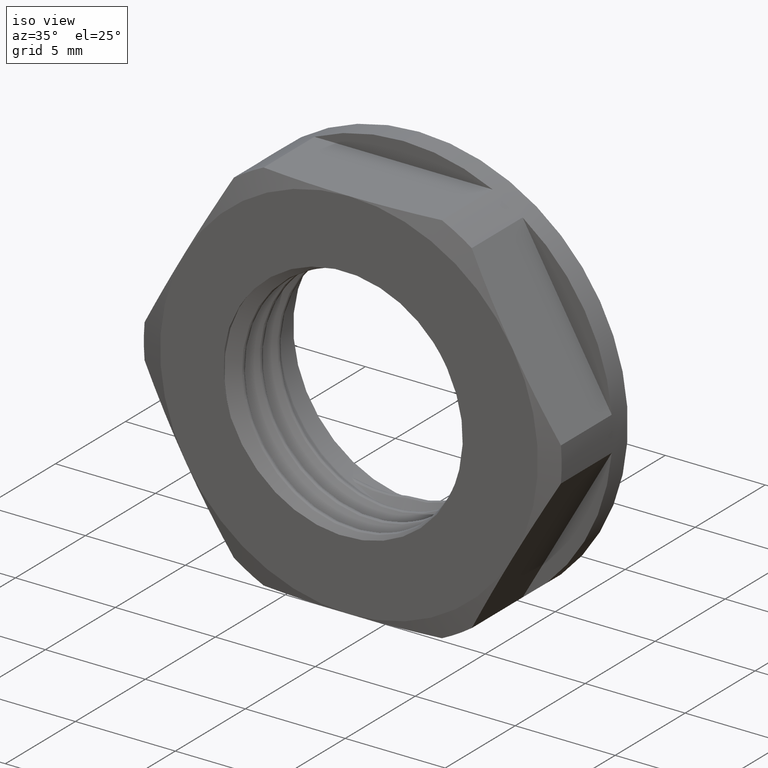
[diagram: clean part render]
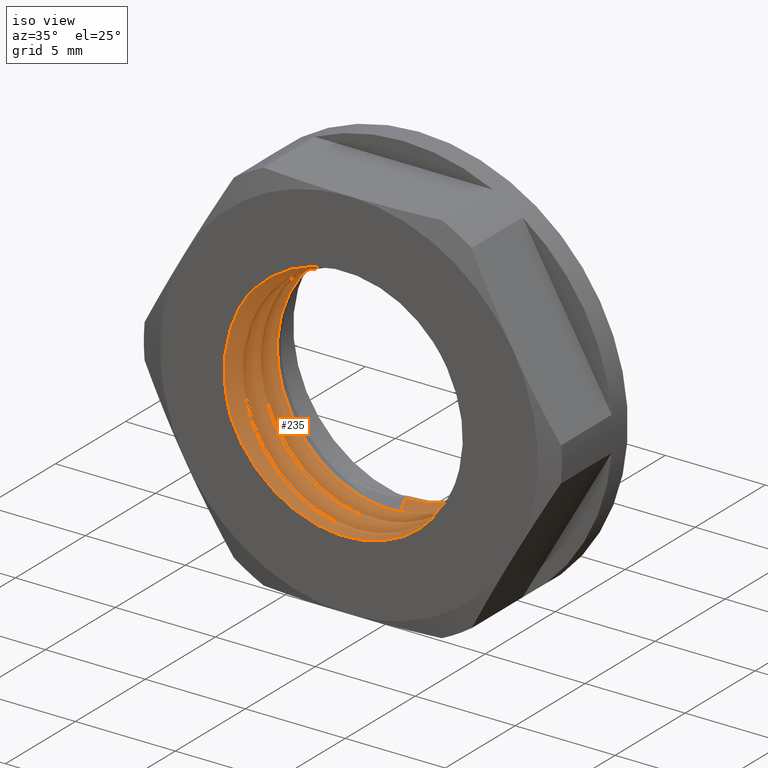
[diagram: same view with one face highlighted and labeled with its STEP entity id]
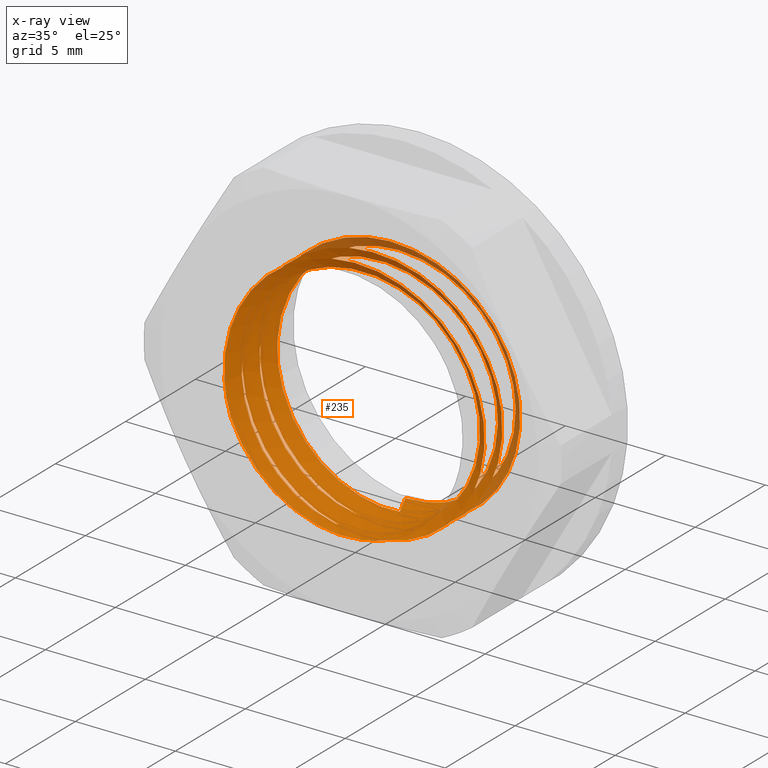
[diagram: x-ray of the same camera — body ghosted, the highlighted face saturated]
A machine part, iso view. The second image highlights one B-rep face of the part: STEP entity #235.
The next image is the same camera in x-ray: the body ghosted, the highlighted face saturated — about 10% of this face is hidden behind the body in this view.
In plain terms, the highlighted face is a freeform B-spline surface patch.
Its self-contained STEP definition (entity closure, byte-faithful):
#2 = CARTESIAN_POINT ( 'NONE',  ( 6.290000000000006253, 3.035639298303869804, 2.605403307326767948 ) ) ;
#4 = CARTESIAN_POINT ( 'NONE',  ( 7.703028366636849654E-16, 0.2575142983038665179, 6.289999999999999147 ) ) ;
#5 = CARTESIAN_POINT ( 'NONE',  ( 5.740009734643887640, 2.385885927115276139, -2.377589880243087261 ) ) ;
#13 = CARTESIAN_POINT ( 'NONE',  ( -6.289999999999995595, 0.01938929830386593514, 2.605403307326773277 ) ) ;
#14 = CARTESIAN_POINT ( 'NONE',  ( -5.740009734643887640, 1.750885927115279017, 2.377589880243092590 ) ) ;
#21 = CARTESIAN_POINT ( 'NONE',  ( 0.0000000000000000000, 3.432514298303865008, -6.289999999999999147 ) ) ;
#22 = CARTESIAN_POINT ( 'NONE',  ( -5.498432423239737687, -1.226932917795190425, 3.054724355333227948 ) ) ;
#25 = CARTESIAN_POINT ( 'NONE',  ( 5.740009734643887640, 2.227135927115277969, 2.377589880243087261 ) ) ;
#35 = CARTESIAN_POINT ( 'NONE',  ( -4.058799807443485008, 5.640260927115280154, 4.058799807443490337 ) ) ;
#58 = CARTESIAN_POINT ( 'NONE',  ( 6.289999999999999147, 4.385014298303869573, -3.851514183318424827E-16 ) ) ;
#59 = CARTESIAN_POINT ( 'NONE',  ( -2.590245273290521233, 2.409999999999998366, -5.531047952235991438 ) ) ;
#103 = CARTESIAN_POINT ( 'NONE',  ( 6.289999999999999147, 5.655014298303869147, -3.851514183318424827E-16 ) ) ;
#108 = CARTESIAN_POINT ( 'NONE',  ( 4.401297004981120864, 2.409999999999999698, -3.770000723141512911 ) ) ;
#112 = CARTESIAN_POINT ( 'NONE',  ( 4.058799807443485008, 6.275260927115279941, -4.058799807443490337 ) ) ;
#115 = CARTESIAN_POINT ( 'NONE',  ( 4.447701653663385102, 2.956264298303864724, 4.447701653663385102 ) ) ;
#119 = EDGE_CURVE ( 'NONE', #270, #1558, #484, .T. ) ;
#120 = CARTESIAN_POINT ( 'NONE',  ( 3.164851914515576681, 2.409999999999999254, -4.962312583039936165 ) ) ;
#126 = CARTESIAN_POINT ( 'NONE',  ( 5.740009734643887640, 4.925885927115277951, -2.377589880243087261 ) ) ;
#129 = CARTESIAN_POINT ( 'NONE',  ( 5.740009734643887640, -0.1541140728847225083, -2.377589880243087261 ) ) ;
#131 = CARTESIAN_POINT ( 'NONE',  ( 0.0000000000000000000, 5.972514298303869040, -6.289999999999999147 ) ) ;
#136 = CARTESIAN_POINT ( 'NONE',  ( -4.447701653663385102, 5.178764298303869751, 4.447701653663385102 ) ) ;
#138 = CARTESIAN_POINT ( 'NONE',  ( -2.605403307326773277, 3.511889298303869200, -6.289999999999995595 ) ) ;
#143 = CARTESIAN_POINT ( 'NONE',  ( -5.740009734643890305, 4.211510927115274860, 1.054422682290941796E-15 ) ) ;
#147 = CARTESIAN_POINT ( 'NONE',  ( -5.017655903764335790, -0.7654362889837827977, 2.787622819756196524 ) ) ;
#149 = CARTESIAN_POINT ( 'NONE',  ( 7.029484548606289816E-16, 3.259010927115274736, 5.740009734643890305 ) ) ;
#151 = CARTESIAN_POINT ( 'NONE',  ( 4.881652594954496216, 2.409999999999999698, -3.056591059789910858 ) ) ;
#154 = CARTESIAN_POINT ( 'NONE',  ( 2.605403307326767948, 5.893139298303867513, -6.290000000000006253 ) ) ;
#158 = CARTESIAN_POINT ( 'NONE',  ( 2.605403307326767948, -0.4568607016961331868, -6.290000000000006253 ) ) ;
#159 = CARTESIAN_POINT ( 'NONE',  ( -5.740009734643887640, 4.290885927115279941, 2.377589880243092590 ) ) ;
#172 = CARTESIAN_POINT ( 'NONE',  ( 4.447701653663385102, 0.4162642983038675193, 4.447701653663385102 ) ) ;
#173 = CARTESIAN_POINT ( 'NONE',  ( 2.377589880243087261, 5.084635927115280118, -5.740009734643887640 ) ) ;
#183 = CARTESIAN_POINT ( 'NONE',  ( 6.289999999999999147, 0.5750142983038659672, -3.851514183318424827E-16 ) ) ;
#184 = CARTESIAN_POINT ( 'NONE',  ( -5.740009734643890305, 4.211510927115274860, 1.054422682290941796E-15 ) ) ;
#192 =( BOUNDED_CURVE ( )  B_SPLINE_CURVE ( 2, ( #1004, #154, #1643, #815, #2182, #287, #502, #2158, #1511 ),
 .UNSPECIFIED., .F., .T. ) 
 B_SPLINE_CURVE_WITH_KNOTS ( ( 3, 2, 2, 2, 3 ),
 ( 0.0000000000000000000, 0.02083333333333333218, 0.04166666666666661578, 0.06249999999999994449, 0.08333333333333323156 ),
 .UNSPECIFIED. ) 
 CURVE ( )  GEOMETRIC_REPRESENTATION_ITEM ( )  RATIONAL_B_SPLINE_CURVE ( ( 1.000000000000000000, 0.9238795325112869605, 1.000000000000000000, 0.9238795325112869605, 1.000000000000000000, 0.9238795325112869605, 1.000000000000000000, 0.9238795325112871826, 0.9999999999999997780 ) ) 
 REPRESENTATION_ITEM ( '' )  );
#195 = CARTESIAN_POINT ( 'NONE',  ( -4.447701653663385102, 1.051264298303866029, -4.447701653663385102 ) ) ;
#196 = CARTESIAN_POINT ( 'NONE',  ( -2.377589880243092590, 2.703385927115278253, -5.740009734643887640 ) ) ;
#205 = EDGE_CURVE ( 'NONE', #1637, #366, #211, .T. ) ;
#208 = CARTESIAN_POINT ( 'NONE',  ( 7.029484548606289816E-16, 5.799010927115279657, 5.740009734643890305 ) ) ;
#209 = CARTESIAN_POINT ( 'NONE',  ( -6.289999999999995595, 3.670639298303866926, -2.605403307326767948 ) ) ;
#211 = B_SPLINE_CURVE_WITH_KNOTS ( 'NONE', 3,
 ( #1639, #151, #1518, #108, #465, #1136, #120, #1770, #1063, #231, #582, #740, #569, #905, #1748, #1914, #1399, #59, #385, #1387, #885, #395, #1234, #707, #2082, #219, #1590, #1245 ),
 .UNSPECIFIED., .F., .F.,
 ( 4, 2, 2, 2, 2, 2, 2, 2, 2, 2, 2, 2, 2, 4 ),
 ( 2.658219637588838087E-17, 0.0008600312832356945885, 0.001720062566471362723, 0.003440125132942698557, 0.005160187699414035475, 0.006020218982649702850, 0.006880250265885371093, 0.007740281549121038468, 0.008600312832356704976, 0.009460344115592373218, 0.01032037539882804320, 0.01118040668206371144, 0.01204043796529937795, 0.01376050053177071096 ),
 .UNSPECIFIED. ) ;
#219 = CARTESIAN_POINT ( 'NONE',  ( -5.410423260531196377, 2.410000000000004139, -3.170680815359750770 ) ) ;
#231 = CARTESIAN_POINT ( 'NONE',  ( 0.7828713576189918477, 2.409999999999997478, -5.919740438357332657 ) ) ;
#235 = ADVANCED_FACE ( 'NONE', ( #1904 ), #718, .T. ) ;
#252 = CARTESIAN_POINT ( 'NONE',  ( 4.447701653663385102, 4.226264298303865630, 4.447701653663385102 ) ) ;
#268 =( BOUNDED_CURVE ( )  B_SPLINE_CURVE ( 2, ( #612, #275, #1106, #1781, #58, #1923, #252, #1276, #1085 ),
 .UNSPECIFIED., .F., .F. ) 
 B_SPLINE_CURVE_WITH_KNOTS ( ( 3, 2, 2, 2, 3 ),
 ( 0.1666666666666665741, 0.1875000000000001665, 0.2083333333333337589, 0.2291666666666668517, 0.2500000000000004441 ),
 .UNSPECIFIED. ) 
 CURVE ( )  GEOMETRIC_REPRESENTATION_ITEM ( )  RATIONAL_B_SPLINE_CURVE ( ( 0.9999999999999997780, 0.9238795325112871826, 1.000000000000000000, 0.9238795325112869605, 1.000000000000000000, 0.9238795325112869605, 1.000000000000000000, 0.9238795325112852952, 1.000000000000001554 ) ) 
 REPRESENTATION_ITEM ( '' )  );
#270 = VERTEX_POINT ( 'NONE', #1737 ) ;
#275 = CARTESIAN_POINT ( 'NONE',  ( 2.605403307326772389, 4.623139298303865274, -6.290000000000000036 ) ) ;
#287 = CARTESIAN_POINT ( 'NONE',  ( 6.290000000000006253, 5.575639298303870284, 2.605403307326767948 ) ) ;
#291 = CARTESIAN_POINT ( 'NONE',  ( 4.058799807443490337, -0.3922390728847234831, 4.058799807443485008 ) ) ;
#292 = EDGE_CURVE ( 'NONE', #1167, #1986, #1332, .T. ) ;
#301 = CARTESIAN_POINT ( 'NONE',  ( -4.058799807443490337, 5.322760927115279372, -4.058799807443485008 ) ) ;
#304 = CARTESIAN_POINT ( 'NONE',  ( 6.290000000000006253, 5.734389298303864457, -2.605403307326767948 ) ) ;
#311 = CARTESIAN_POINT ( 'NONE',  ( -5.740009734643887640, 5.402135927115277347, -2.377589880243087261 ) ) ;
#315 = CARTESIAN_POINT ( 'NONE',  ( 7.703028366636849654E-16, 5.337514298303870142, 6.289999999999999147 ) ) ;
#322 = CARTESIAN_POINT ( 'NONE',  ( 0.0000000000000000000, 3.894010927115274967, -5.740009734643890305 ) ) ;
#324 = CARTESIAN_POINT ( 'NONE',  ( -6.289999999999995595, 2.559389298303864191, 2.605403307326773277 ) ) ;
#325 = CARTESIAN_POINT ( 'NONE',  ( 0.0000000000000000000, 1.354010927115276264, -5.740009734643890305 ) ) ;
#332 = CARTESIAN_POINT ( 'NONE',  ( -6.289999999999995595, 5.099389298303871776, 2.605403307326772833 ) ) ;
#337 = CARTESIAN_POINT ( 'NONE',  ( 2.377589880243087261, 0.004635927115277159102, -5.740009734643887640 ) ) ;
#338 = CARTESIAN_POINT ( 'NONE',  ( 5.740009734643887640, 3.655885927115276601, -2.377589880243087261 ) ) ;
#347 = CARTESIAN_POINT ( 'NONE',  ( 6.289999999999999147, 1.845014298303864875, -3.851514183318424827E-16 ) ) ;
#349 = CARTESIAN_POINT ( 'NONE',  ( -5.740009734643887640, 4.132135927115276886, -2.377589880243087261 ) ) ;
#359 = CARTESIAN_POINT ( 'NONE',  ( 4.447701653663385102, 0.7337642983038660249, -4.447701653663385102 ) ) ;
#361 = CARTESIAN_POINT ( 'NONE',  ( -4.058799807443485008, 0.5602609271152770853, 4.058799807443490337 ) ) ;
#366 = VERTEX_POINT ( 'NONE', #1258 ) ;
#368 = CARTESIAN_POINT ( 'NONE',  ( -4.058799807443490337, 2.782760927115279781, -4.058799807443485008 ) ) ;
#373 = CARTESIAN_POINT ( 'NONE',  ( -2.605403307326773277, -0.2981107016961312972, -6.289999999999995595 ) ) ;
#374 = CARTESIAN_POINT ( 'NONE',  ( 4.058799807443485008, 5.005260927115279479, -4.058799807443490337 ) ) ;
#385 = CARTESIAN_POINT ( 'NONE',  ( -2.851495400962189120, 2.409999999999998810, -5.414231642245182385 ) ) ;
#386 = CARTESIAN_POINT ( 'NONE',  ( -4.447701653663385102, 3.591264298303864955, -4.447701653663385102 ) ) ;
#395 = CARTESIAN_POINT ( 'NONE',  ( -4.063167928206421919, 2.409999999999978382, -4.650353581532226777 ) ) ;
#416 = CARTESIAN_POINT ( 'NONE',  ( 5.740009734643887640, 6.037135927115281575, 2.377589880243087261 ) ) ;
#455 = CARTESIAN_POINT ( 'NONE',  ( 4.058799807443485008, 5.005260927115279479, -4.058799807443490337 ) ) ;
#459 = CARTESIAN_POINT ( 'NONE',  ( -6.289999999999999147, 3.750014298303864901, 1.155454254995528040E-15 ) ) ;
#465 = CARTESIAN_POINT ( 'NONE',  ( 4.215987886039672006, 2.410000000000001030, -3.992923029111210553 ) ) ;
#473 = CARTESIAN_POINT ( 'NONE',  ( 2.605403307326767948, 4.146889298303866767, 6.290000000000006253 ) ) ;
#479 = CARTESIAN_POINT ( 'NONE',  ( -4.058799807443485008, 4.370260927115279692, 4.058799807443490337 ) ) ;
#483 = CARTESIAN_POINT ( 'NONE',  ( 5.740009734643887640, -0.3128640728847223995, 2.377589880243087261 ) ) ;
#484 = B_SPLINE_CURVE_WITH_KNOTS ( 'NONE', 1,
 ( #991, #131 ),
 .UNSPECIFIED., .F., .F.,
 ( 2, 2 ),
 ( 0.0000000000000000000, 1.000000000000000000 ),
 .UNSPECIFIED. ) ;
#490 = CARTESIAN_POINT ( 'NONE',  ( -4.058799807443490337, 4.052760927115279799, -4.058799807443485008 ) ) ;
#492 = CARTESIAN_POINT ( 'NONE',  ( -6.289999999999995595, 3.829389298303864653, 2.605403307326773277 ) ) ;
#494 = CARTESIAN_POINT ( 'NONE',  ( -5.740009734643887640, 1.592135927115276406, -2.377589880243087261 ) ) ;
#501 =( BOUNDED_CURVE ( )  B_SPLINE_CURVE ( 2, ( #1306, #1619, #768, #1328, #2146, #1116, #2015 ),
 .UNSPECIFIED., .F., .T. ) 
 B_SPLINE_CURVE_WITH_KNOTS ( ( 3, 2, 2, 3 ),
 ( 0.4166666666666672403, 0.4375000000000004441, 0.4583333333333330928, 0.4675677138156719703 ),
 .UNSPECIFIED. ) 
 CURVE ( )  GEOMETRIC_REPRESENTATION_ITEM ( )  RATIONAL_B_SPLINE_CURVE ( ( 0.9999999999999973355, 0.9238795325112896251, 1.000000000000000000, 0.9238795325112869605, 1.000000000000000000, 0.9662595827543550842, 0.9624300631547082485 ) ) 
 REPRESENTATION_ITEM ( '' )  );
#502 = CARTESIAN_POINT ( 'NONE',  ( 4.447701653663385102, 5.496264298303870532, 4.447701653663385102 ) ) ;
#505 = CARTESIAN_POINT ( 'NONE',  ( 6.290000000000006253, 3.035639298303869360, 2.605403307326767948 ) ) ;
#507 = CARTESIAN_POINT ( 'NONE',  ( -4.058799807443490337, 1.512760927115274878, -4.058799807443485008 ) ) ;
#509 = VERTEX_POINT ( 'NONE', #601 ) ;
#516 = CARTESIAN_POINT ( 'NONE',  ( 2.605403307326767948, -0.9331107016961317502, 6.290000000000006253 ) ) ;
#517 = CARTESIAN_POINT ( 'NONE',  ( 5.740009734643890305, 3.576510927115275074, -3.514742274303144908E-16 ) ) ;
#527 = CARTESIAN_POINT ( 'NONE',  ( -4.447701653663385102, 1.368764298303866145, 4.447701653663385102 ) ) ;
#529 = CARTESIAN_POINT ( 'NONE',  ( -2.377589880243087261, 4.449635927115278555, 5.740009734643887640 ) ) ;
#533 = CARTESIAN_POINT ( 'NONE',  ( -5.740009734643887640, 3.020885927115279479, 2.377589880243092590 ) ) ;
#538 = CARTESIAN_POINT ( 'NONE',  ( 6.290000000000006253, -0.6156107016961323009, -2.605403307326767948 ) ) ;
#539 = CARTESIAN_POINT ( 'NONE',  ( 4.058799807443490337, 4.687760927115279586, 4.058799807443485008 ) ) ;
#549 = CARTESIAN_POINT ( 'NONE',  ( 6.290000000000006253, -0.7743607016961324696, 2.605403307326767948 ) ) ;
#559 = CARTESIAN_POINT ( 'NONE',  ( -5.740009734643890305, 5.481510927115279763, 1.054422682290941796E-15 ) ) ;
#569 = CARTESIAN_POINT ( 'NONE',  ( -0.3606305939122831372, 2.410000000000003695, -6.004813322399380482 ) ) ;
#582 = CARTESIAN_POINT ( 'NONE',  ( 0.4952299446936841987, 2.409999999999991260, -5.962238220899978458 ) ) ;
#601 = CARTESIAN_POINT ( 'NONE',  ( 7.703028366636849654E-16, 5.337514298303870142, 6.289999999999999147 ) ) ;
#607 = ORIENTED_EDGE ( 'NONE', *, *, #205, .F. ) ;
#612 = CARTESIAN_POINT ( 'NONE',  ( 0.0000000000000000000, 4.702514298303870355, -6.289999999999999147 ) ) ;
#625 = CARTESIAN_POINT ( 'NONE',  ( 7.029484548606289816E-16, -0.5509890728847240959, 5.740009734643890305 ) ) ;
#635 = CARTESIAN_POINT ( 'NONE',  ( 4.058799807443485008, -0.07473907288472329824, -4.058799807443490337 ) ) ;
#644 = CARTESIAN_POINT ( 'NONE',  ( 5.740009734643887640, 4.767135927115275784, 2.377589880243087261 ) ) ;
#647 = CARTESIAN_POINT ( 'NONE',  ( -6.289999999999995595, 5.099389298303871776, 2.605403307326773277 ) ) ;
#654 = CARTESIAN_POINT ( 'NONE',  ( 2.605403307326767948, 3.353139298303865701, -6.290000000000006253 ) ) ;
#661 = CARTESIAN_POINT ( 'NONE',  ( 7.029484548606289816E-16, 4.529010927115279195, 5.740009734643890305 ) ) ;
#664 = CARTESIAN_POINT ( 'NONE',  ( -2.605403307326773277, 2.241889298303868738, -6.289999999999995595 ) ) ;
#665 = CARTESIAN_POINT ( 'NONE',  ( 0.0000000000000000000, 3.894010927115274967, -5.740009734643890305 ) ) ;
#671 = CARTESIAN_POINT ( 'NONE',  ( -4.058799807443485008, 3.100260927115280118, 4.058799807443490337 ) ) ;
#674 = CARTESIAN_POINT ( 'NONE',  ( -6.289999999999995595, 1.289389298303865949, 2.605403307326773277 ) ) ;
#676 = CARTESIAN_POINT ( 'NONE',  ( 2.377589880243087261, 0.7983859271152775605, 5.740009734643887640 ) ) ;
#682 = CARTESIAN_POINT ( 'NONE',  ( -2.377589880243087261, 3.179635927115276761, 5.740009734643887640 ) ) ;
#685 = CARTESIAN_POINT ( 'NONE',  ( 4.447701653663385102, 2.956264298303864724, 4.447701653663385102 ) ) ;
#686 = CARTESIAN_POINT ( 'NONE',  ( -6.289999999999999147, -0.05998570169613370168, 1.155454254995528040E-15 ) ) ;
#687 = CARTESIAN_POINT ( 'NONE',  ( 4.058799807443485008, 3.735260927115280349, -4.058799807443490337 ) ) ;
#697 = CARTESIAN_POINT ( 'NONE',  ( 6.290000000000006253, 0.6543892983038660516, -2.605403307326767948 ) ) ;
#698 = CARTESIAN_POINT ( 'NONE',  ( 2.377589880243087261, 3.338385927115275820, 5.740009734643887640 ) ) ;
#707 = CARTESIAN_POINT ( 'NONE',  ( -4.690751909709454104, 2.410000000000001918, -4.065397927147927248 ) ) ;
#708 = CARTESIAN_POINT ( 'NONE',  ( 0.0000000000000000000, 3.432514298303865008, -6.289999999999999147 ) ) ;
#716 = CARTESIAN_POINT ( 'NONE',  ( -5.740009734643887640, 5.560885927115282179, 2.377589880243092590 ) ) ;
#718 =( BOUNDED_SURFACE ( )  B_SPLINE_SURFACE ( 1, 2, ( 
 ( #1257, #727, #2093, #1052, #1937, #416, #1736, #1086, #208, #1566, #35, #716, #559, #1032, #1344, #853, #1516, #173, #374, #1691, #1714, #2042, #539, #1725, #1209, #529, #830, #159, #184, #349, #1197, #1042, #665, #839, #687, #338, #517, #1892, #1525, #698, #149, #2063, #1363, #2052, #1556, #1186, #863, #196, #873, #1682, #1535, #5, #1848, #25, #2197, #1546, #1333, #2019, #1376, #14, #2030, #494, #507, #1165, #325, #1880, #998, #1175, #1859, #1009, #2208, #676, #1353, #1869, #361, #1019, #1701, #2177, #782, #1174, #1829, #337, #635, #129, #1838, #483, #291, #1660, #625, #1515, #1131, #1342, #147 ),
 ( #1816, #1154, #809, #304, #103, #2162, #1495, #1331, #315, #977, #1997, #647, #988, #1503, #1323, #1858, #829, #1312, #1634, #1648, #2008, #1984, #1469, #473, #1671, #2151, #1142, #492, #459, #1299, #2028, #138, #1846, #654, #819, #2185, #2018, #505, #115, #796, #966, #1164, #1481, #324, #997, #1680, #2195, #664, #852, #1690, #1867, #1031, #347, #1555, #1724, #838, #1524, #2206, #527, #674, #1879, #862, #195, #1713, #1534, #1196, #359, #697, #183, #2051, #172, #2072, #4, #2040, #1545, #13, #686, #1362, #1373, #373, #872, #158, #2062, #538, #1007, #549, #1208, #516, #1352, #1891, #1185, #1041, #22 ) ),
 .UNSPECIFIED., .F., .F., .F. ) 
 B_SPLINE_SURFACE_WITH_KNOTS ( ( 2, 2 ),
 ( 3, 2, 2, 2, 2, 2, 2, 2, 2, 2, 2, 2, 2, 2, 2, 2, 2, 2, 2, 2, 2, 2, 2, 2, 2, 2, 2, 2, 2, 2, 2, 2, 2, 2, 2, 2, 2, 2, 2, 2, 2, 2, 2, 2, 2, 2, 3 ),
 ( 0.0000000000000000000, 1.000000000000000000 ),
 ( 0.0000000000000000000, 0.02083333333333334952, 0.04166666666666665048, 0.06250000000000000000, 0.08333333333333330095, 0.1041666666666666019, 0.1250000000000000000, 0.1458333333333333981, 0.1666666666666665186, 0.1875000000000000000, 0.2083333333333335091, 0.2291666666666664909, 0.2500000000000000000, 0.2708333333333335369, 0.2916666666666665186, 0.3125000000000000000, 0.3333333333333335369, 0.3541666666666665186, 0.3750000000000000000, 0.3958333333333335369, 0.4166666666666665186, 0.4375000000000000000, 0.4583333333333329818, 0.4791666666666670182, 0.5000000000000000000, 0.5208333333333330373, 0.5416666666666670737, 0.5625000000000000000, 0.5833333333333330373, 0.6041666666666670737, 0.6250000000000000000, 0.6458333333333330373, 0.6666666666666670737, 0.6875000000000000000, 0.7083333333333330373, 0.7291666666666670737, 0.7500000000000000000, 0.7708333333333330373, 0.7916666666666670737, 0.8125000000000000000, 0.8333333333333330373, 0.8541666666666670737, 0.8750000000000000000, 0.8958333333333330373, 0.9166666666666670737, 0.9375000000000000000, 0.9449178093676999790 ),
 .UNSPECIFIED. ) 
 GEOMETRIC_REPRESENTATION_ITEM ( )  RATIONAL_B_SPLINE_SURFACE ( (
 ( 1.000000000000000000, 0.9238795325112869605, 1.000000000000000000, 0.9238795325112869605, 1.000000000000000000, 0.9238795325112869605, 1.000000000000000000, 0.9238795325112869605, 1.000000000000000000, 0.9238795325112869605, 1.000000000000000000, 0.9238795325112869605, 1.000000000000000000, 0.9238795325112869605, 1.000000000000000000, 0.9238795325112869605, 1.000000000000000000, 0.9238795325112869605, 1.000000000000000000, 0.9238795325112869605, 1.000000000000000000, 0.9238795325112869605, 1.000000000000000000, 0.9238795325112869605, 1.000000000000000000, 0.9238795325112869605, 1.000000000000000000, 0.9238795325112869605, 1.000000000000000000, 0.9238795325112869605, 1.000000000000000000, 0.9238795325112869605, 1.000000000000000000, 0.9238795325112869605, 1.000000000000000000, 0.9238795325112869605, 1.000000000000000000, 0.9238795325112869605, 1.000000000000000000, 0.9238795325112869605, 1.000000000000000000, 0.9238795325112869605, 1.000000000000000000, 0.9238795325112869605, 1.000000000000000000, 0.9238795325112869605, 1.000000000000000000, 0.9238795325112869605, 1.000000000000000000, 0.9238795325112869605, 1.000000000000000000, 0.9238795325112869605, 1.000000000000000000, 0.9238795325112869605, 1.000000000000000000, 0.9238795325112869605, 1.000000000000000000, 0.9238795325112869605, 1.000000000000000000, 0.9238795325112869605, 1.000000000000000000, 0.9238795325112869605, 1.000000000000000000, 0.9238795325112869605, 1.000000000000000000, 0.9238795325112869605, 1.000000000000000000, 0.9238795325112869605, 1.000000000000000000, 0.9238795325112869605, 1.000000000000000000, 0.9238795325112869605, 1.000000000000000000, 0.9238795325112869605, 1.000000000000000000, 0.9238795325112869605, 1.000000000000000000, 0.9238795325112869605, 1.000000000000000000, 0.9238795325112869605, 1.000000000000000000, 0.9238795325112869605, 1.000000000000000000, 0.9238795325112869605, 1.000000000000000000, 0.9238795325112869605, 1.000000000000000000, 0.9238795325112869605, 1.000000000000000000, 0.9238795325112869605, 1.000000000000000000, 0.9728969383930500259, 0.9650942298371120165),
 ( 1.000000000000000000, 0.9238795325112869605, 1.000000000000000000, 0.9238795325112869605, 1.000000000000000000, 0.9238795325112869605, 1.000000000000000000, 0.9238795325112869605, 1.000000000000000000, 0.9238795325112869605, 1.000000000000000000, 0.9238795325112869605, 1.000000000000000000, 0.9238795325112869605, 1.000000000000000000, 0.9238795325112869605, 1.000000000000000000, 0.9238795325112869605, 1.000000000000000000, 0.9238795325112869605, 1.000000000000000000, 0.9238795325112869605, 1.000000000000000000, 0.9238795325112869605, 1.000000000000000000, 0.9238795325112869605, 1.000000000000000000, 0.9238795325112869605, 1.000000000000000000, 0.9238795325112869605, 1.000000000000000000, 0.9238795325112869605, 1.000000000000000000, 0.9238795325112869605, 1.000000000000000000, 0.9238795325112869605, 1.000000000000000000, 0.9238795325112869605, 1.000000000000000000, 0.9238795325112869605, 1.000000000000000000, 0.9238795325112869605, 1.000000000000000000, 0.9238795325112869605, 1.000000000000000000, 0.9238795325112869605, 1.000000000000000000, 0.9238795325112869605, 1.000000000000000000, 0.9238795325112869605, 1.000000000000000000, 0.9238795325112869605, 1.000000000000000000, 0.9238795325112869605, 1.000000000000000000, 0.9238795325112869605, 1.000000000000000000, 0.9238795325112869605, 1.000000000000000000, 0.9238795325112869605, 1.000000000000000000, 0.9238795325112869605, 1.000000000000000000, 0.9238795325112869605, 1.000000000000000000, 0.9238795325112869605, 1.000000000000000000, 0.9238795325112869605, 1.000000000000000000, 0.9238795325112869605, 1.000000000000000000, 0.9238795325112869605, 1.000000000000000000, 0.9238795325112869605, 1.000000000000000000, 0.9238795325112869605, 1.000000000000000000, 0.9238795325112869605, 1.000000000000000000, 0.9238795325112869605, 1.000000000000000000, 0.9238795325112869605, 1.000000000000000000, 0.9238795325112869605, 1.000000000000000000, 0.9238795325112869605, 1.000000000000000000, 0.9238795325112869605, 1.000000000000000000, 0.9238795325112869605, 1.000000000000000000, 0.9728969383930500259, 0.9650942298371120165) ) ) 
 REPRESENTATION_ITEM ( '' )  SURFACE ( )  );
#726 = CARTESIAN_POINT ( 'NONE',  ( 6.290000000000006253, 3.194389298303867530, -2.605403307326767948 ) ) ;
#727 = CARTESIAN_POINT ( 'NONE',  ( 2.377589880243087261, 6.354635927115275251, -5.740009734643887640 ) ) ;
#740 = CARTESIAN_POINT ( 'NONE',  ( -0.07539187108735764808, 2.409999999999991260, -6.004384240575380005 ) ) ;
#768 = CARTESIAN_POINT ( 'NONE',  ( -4.447701653663385102, 2.638764298303865274, 4.447701653663385102 ) ) ;
#782 = CARTESIAN_POINT ( 'NONE',  ( -4.058799807443490337, 0.2427609271152769976, -4.058799807443485008 ) ) ;
#793 = CARTESIAN_POINT ( 'NONE',  ( 0.0000000000000000000, 4.702514298303870355, -6.289999999999999147 ) ) ;
#796 = CARTESIAN_POINT ( 'NONE',  ( 2.605403307326767948, 2.876889298303866305, 6.290000000000006253 ) ) ;
#806 = CARTESIAN_POINT ( 'NONE',  ( 5.740009734643890305, 4.846510927115279976, -3.514742274303144908E-16 ) ) ;
#809 = CARTESIAN_POINT ( 'NONE',  ( 4.447701653663385102, 5.813764298303869538, -4.447701653663385102 ) ) ;
#815 = CARTESIAN_POINT ( 'NONE',  ( 6.290000000000006253, 5.734389298303863569, -2.605403307326767948 ) ) ;
#819 = CARTESIAN_POINT ( 'NONE',  ( 4.447701653663385102, 3.273764298303865061, -4.447701653663385102 ) ) ;
#825 = CARTESIAN_POINT ( 'NONE',  ( 5.740009734643890305, 3.576510927115275074, -3.514742274303144908E-16 ) ) ;
#829 = CARTESIAN_POINT ( 'NONE',  ( 0.0000000000000000000, 4.702514298303870355, -6.289999999999999147 ) ) ;
#830 = CARTESIAN_POINT ( 'NONE',  ( -4.058799807443485008, 4.370260927115279692, 4.058799807443490337 ) ) ;
#835 = CARTESIAN_POINT ( 'NONE',  ( -2.377589880243087261, 5.719635927115273688, 5.740009734643887640 ) ) ;
#838 = CARTESIAN_POINT ( 'NONE',  ( 2.605403307326767948, 1.606889298303866731, 6.290000000000006253 ) ) ;
#839 = CARTESIAN_POINT ( 'NONE',  ( 2.377589880243087261, 3.814635927115275216, -5.740009734643887640 ) ) ;
#852 = CARTESIAN_POINT ( 'NONE',  ( 0.0000000000000000000, 2.162514298303864990, -6.289999999999999147 ) ) ;
#853 = CARTESIAN_POINT ( 'NONE',  ( -2.377589880243092590, 5.243385927115273404, -5.740009734643887640 ) ) ;
#861 = CARTESIAN_POINT ( 'NONE',  ( 7.703028366636849654E-16, 2.797514298303864777, 6.289999999999999147 ) ) ;
#862 = CARTESIAN_POINT ( 'NONE',  ( -6.289999999999995595, 1.130639298303867113, -2.605403307326767948 ) ) ;
#863 = CARTESIAN_POINT ( 'NONE',  ( -4.058799807443490337, 2.782760927115279781, -4.058799807443485008 ) ) ;
#864 = CARTESIAN_POINT ( 'NONE',  ( -2.605403307326735973, 3.511889298303867868, -6.290000000000032010 ) ) ;
#872 = CARTESIAN_POINT ( 'NONE',  ( 0.0000000000000000000, -0.3774857016961340461, -6.289999999999999147 ) ) ;
#873 = CARTESIAN_POINT ( 'NONE',  ( 0.0000000000000000000, 2.624010927115274949, -5.740009734643890305 ) ) ;
#885 = CARTESIAN_POINT ( 'NONE',  ( -3.603382591783128586, 2.409999999999978382, -4.987972833220859492 ) ) ;
#905 = CARTESIAN_POINT ( 'NONE',  ( -0.9309690191795337855, 2.410000000000003695, -5.965913584017219939 ) ) ;
#908 = ORIENTED_EDGE ( 'NONE', *, *, #1951, .T. ) ;
#911 = VERTEX_POINT ( 'NONE', #2004 ) ;
#963 = CARTESIAN_POINT ( 'NONE',  ( -2.605403307326767948, 4.781889298303864777, -6.290000000000000036 ) ) ;
#966 = CARTESIAN_POINT ( 'NONE',  ( 7.703028366636849654E-16, 2.797514298303864777, 6.289999999999999147 ) ) ;
#972 = CARTESIAN_POINT ( 'NONE',  ( 7.703028366636849654E-16, 4.067514298303865239, 6.289999999999999147 ) ) ;
#974 = CARTESIAN_POINT ( 'NONE',  ( -2.377589880243092590, 5.243385927115273404, -5.740009734643887640 ) ) ;
#977 = CARTESIAN_POINT ( 'NONE',  ( -2.605403307326767948, 5.258139298303863285, 6.290000000000006253 ) ) ;
#985 = CARTESIAN_POINT ( 'NONE',  ( 2.377589880243087261, 5.878385927115276743, 5.740009734643887640 ) ) ;
#988 = CARTESIAN_POINT ( 'NONE',  ( -6.289999999999999147, 5.020014298303870248, 1.155454254995528040E-15 ) ) ;
#991 = CARTESIAN_POINT ( 'NONE',  ( 0.0000000000000000000, 6.434010927115280332, -5.740009734643890305 ) ) ;
#995 = CARTESIAN_POINT ( 'NONE',  ( 4.058799807443485008, 3.735260927115280349, -4.058799807443490337 ) ) ;
#997 = CARTESIAN_POINT ( 'NONE',  ( -6.289999999999999147, 2.480014298303865328, 1.155454254995528040E-15 ) ) ;
#998 = CARTESIAN_POINT ( 'NONE',  ( 4.058799807443485008, 1.195260927115276095, -4.058799807443490337 ) ) ;
#1004 = CARTESIAN_POINT ( 'NONE',  ( 0.0000000000000000000, 5.972514298303869040, -6.289999999999999147 ) ) ;
#1007 = CARTESIAN_POINT ( 'NONE',  ( 6.289999999999999147, -0.6949857016961339395, -3.851514183318424827E-16 ) ) ;
#1008 = EDGE_CURVE ( 'NONE', #911, #366, #501, .T. ) ;
#1009 = CARTESIAN_POINT ( 'NONE',  ( 5.740009734643887640, 0.9571359271152788395, 2.377589880243087261 ) ) ;
#1014 = CARTESIAN_POINT ( 'NONE',  ( 4.622862401621406825, 2.438629827876275691, -3.494737213265568521 ) ) ;
#1019 = CARTESIAN_POINT ( 'NONE',  ( -5.740009734643887640, 0.4808859271152782222, 2.377589880243092590 ) ) ;
#1030 = CARTESIAN_POINT ( 'NONE',  ( 4.447701653663385102, 3.273764298303865061, -4.447701653663385102 ) ) ;
#1031 = CARTESIAN_POINT ( 'NONE',  ( 6.290000000000006253, 1.924389298303867069, -2.605403307326767948 ) ) ;
#1032 = CARTESIAN_POINT ( 'NONE',  ( -5.740009734643887640, 5.402135927115278236, -2.377589880243087261 ) ) ;
#1035 = CARTESIAN_POINT ( 'NONE',  ( 0.0000000000000000000, 2.624010927115274949, -5.740009734643890305 ) ) ;
#1041 = CARTESIAN_POINT ( 'NONE',  ( -5.070611759780486061, -1.198073640171932963, 3.824791547546288140 ) ) ;
#1042 = CARTESIAN_POINT ( 'NONE',  ( -2.377589880243092590, 3.973385927115279159, -5.740009734643887640 ) ) ;
#1052 = CARTESIAN_POINT ( 'NONE',  ( 5.740009734643887640, 6.195885927115273084, -2.377589880243087261 ) ) ;
#1063 = CARTESIAN_POINT ( 'NONE',  ( 1.622861421398451798, 2.409999999999997033, -5.731835401860882584 ) ) ;
#1085 = CARTESIAN_POINT ( 'NONE',  ( 7.703028366636849654E-16, 4.067514298303865239, 6.289999999999999147 ) ) ;
#1086 = CARTESIAN_POINT ( 'NONE',  ( 2.377589880243087261, 5.878385927115276743, 5.740009734643887640 ) ) ;
#1087 = CARTESIAN_POINT ( 'NONE',  ( -2.605403307326810136, 3.988139298303866820, 6.289999999999962732 ) ) ;
#1092 = ORIENTED_EDGE ( 'NONE', *, *, #119, .T. ) ;
#1106 = CARTESIAN_POINT ( 'NONE',  ( 4.447701653663385102, 4.543764298303869964, -4.447701653663385102 ) ) ;
#1116 = CARTESIAN_POINT ( 'NONE',  ( -6.289999999999998259, 2.446374431130511340, -1.104194282727440024 ) ) ;
#1127 = CARTESIAN_POINT ( 'NONE',  ( 2.377589880243087261, 4.608385927115276282, 5.740009734643887640 ) ) ;
#1131 = CARTESIAN_POINT ( 'NONE',  ( -4.058799807443485008, -0.7097390728847240426, 4.058799807443490337 ) ) ;
#1136 = CARTESIAN_POINT ( 'NONE',  ( 3.616247832652129901, 2.410000000000001474, -4.613741461984504078 ) ) ;
#1139 = CARTESIAN_POINT ( 'NONE',  ( 5.740009734643890305, 6.116510927115279550, -3.514742274303144908E-16 ) ) ;
#1142 = CARTESIAN_POINT ( 'NONE',  ( -4.447701653663385102, 3.908764298303865292, 4.447701653663385102 ) ) ;
#1151 = CARTESIAN_POINT ( 'NONE',  ( 5.740009734643887640, 6.037135927115281575, 2.377589880243087261 ) ) ;
#1154 = CARTESIAN_POINT ( 'NONE',  ( 2.605403307326767948, 5.893139298303867513, -6.290000000000006253 ) ) ;
#1161 = CARTESIAN_POINT ( 'NONE',  ( -2.377589880243092590, 3.973385927115278715, -5.740009734643887640 ) ) ;
#1164 = CARTESIAN_POINT ( 'NONE',  ( -2.605403307326767948, 2.718139298303868134, 6.290000000000006253 ) ) ;
#1165 = CARTESIAN_POINT ( 'NONE',  ( -2.377589880243092590, 1.433385927115277125, -5.740009734643887640 ) ) ;
#1167 = VERTEX_POINT ( 'NONE', #972 ) ;
#1171 = CARTESIAN_POINT ( 'NONE',  ( 2.377589880243087261, 6.354635927115277028, -5.740009734643887640 ) ) ;
#1174 = CARTESIAN_POINT ( 'NONE',  ( -2.377589880243092590, 0.1633859271152788006, -5.740009734643887640 ) ) ;
#1175 = CARTESIAN_POINT ( 'NONE',  ( 5.740009734643887640, 1.115885927115279008, -2.377589880243087261 ) ) ;
#1183 = CARTESIAN_POINT ( 'NONE',  ( 0.0000000000000000000, 5.972514298303869040, -6.289999999999999147 ) ) ;
#1185 = CARTESIAN_POINT ( 'NONE',  ( -4.447701653663385102, -1.171235701696133891, 4.447701653663385102 ) ) ;
#1186 = CARTESIAN_POINT ( 'NONE',  ( -5.740009734643887640, 2.862135927115275980, -2.377589880243087261 ) ) ;
#1188 = ORIENTED_EDGE ( 'NONE', *, *, #292, .T. ) ;
#1196 = CARTESIAN_POINT ( 'NONE',  ( 2.605403307326767948, 0.8131392983038685518, -6.290000000000006253 ) ) ;
#1197 = CARTESIAN_POINT ( 'NONE',  ( -4.058799807443490337, 4.052760927115279799, -4.058799807443485008 ) ) ;
#1203 = CARTESIAN_POINT ( 'NONE',  ( -5.740009734643890305, 2.941510927115274843, 1.054422682290941796E-15 ) ) ;
#1208 = CARTESIAN_POINT ( 'NONE',  ( 4.447701653663385102, -0.8537357016961331091, 4.447701653663385102 ) ) ;
#1209 = CARTESIAN_POINT ( 'NONE',  ( 7.029484548606289816E-16, 4.529010927115279195, 5.740009734643890305 ) ) ;
#1234 = CARTESIAN_POINT ( 'NONE',  ( -4.280578764617875898, 2.410000000000002363, -4.465758893437820731 ) ) ;
#1235 = CARTESIAN_POINT ( 'NONE',  ( -6.289999999999999147, 3.750014298303864901, 1.155454254995528040E-15 ) ) ;
#1245 = CARTESIAN_POINT ( 'NONE',  ( -5.913912597876669786, 2.409999999999999698, -2.142367331872760072 ) ) ;
#1246 = CARTESIAN_POINT ( 'NONE',  ( -4.447701653663385102, 3.908764298303865292, 4.447701653663385102 ) ) ;
#1257 = CARTESIAN_POINT ( 'NONE',  ( 0.0000000000000000000, 6.434010927115280332, -5.740009734643890305 ) ) ;
#1258 = CARTESIAN_POINT ( 'NONE',  ( -5.913912597876669786, 2.409999999999999698, -2.142367331872760072 ) ) ;
#1276 = CARTESIAN_POINT ( 'NONE',  ( 2.605403307326724871, 4.146889298303864102, 6.290000000000047997 ) ) ;
#1296 = CARTESIAN_POINT ( 'NONE',  ( 7.703028366636849654E-16, 5.337514298303870142, 6.289999999999999147 ) ) ;
#1299 = CARTESIAN_POINT ( 'NONE',  ( -6.289999999999995595, 3.670639298303867371, -2.605403307326767948 ) ) ;
#1306 = CARTESIAN_POINT ( 'NONE',  ( 7.703028366636849654E-16, 2.797514298303864777, 6.289999999999999147 ) ) ;
#1307 = CARTESIAN_POINT ( 'NONE',  ( -6.289999999999999147, 5.020014298303870248, 1.155454254995528040E-15 ) ) ;
#1312 = CARTESIAN_POINT ( 'NONE',  ( 2.605403307326767948, 4.623139298303867051, -6.290000000000006253 ) ) ;
#1319 = CARTESIAN_POINT ( 'NONE',  ( 4.058799807443490337, 4.687760927115279586, 4.058799807443485008 ) ) ;
#1323 = CARTESIAN_POINT ( 'NONE',  ( -4.447701653663385102, 4.861264298303869857, -4.447701653663385102 ) ) ;
#1328 = CARTESIAN_POINT ( 'NONE',  ( -6.289999999999995595, 2.559389298303864191, 2.605403307326772833 ) ) ;
#1329 = CARTESIAN_POINT ( 'NONE',  ( 7.029484548606289816E-16, 5.799010927115279657, 5.740009734643890305 ) ) ;
#1331 = CARTESIAN_POINT ( 'NONE',  ( 2.605403307326767948, 5.416889298303867228, 6.290000000000006253 ) ) ;
#1332 =( BOUNDED_CURVE ( )  B_SPLINE_CURVE ( 2, ( #2107, #1087, #1246, #1893, #1235, #209, #386, #864, #708 ),
 .UNSPECIFIED., .F., .T. ) 
 B_SPLINE_CURVE_WITH_KNOTS ( ( 3, 2, 2, 2, 3 ),
 ( 0.2500000000000004441, 0.2708333333333339810, 0.2916666666666669627, 0.3125000000000003886, 0.3333333333333339255 ),
 .UNSPECIFIED. ) 
 CURVE ( )  GEOMETRIC_REPRESENTATION_ITEM ( )  RATIONAL_B_SPLINE_CURVE ( ( 0.9999999999999983347, 0.9238795325112886259, 1.000000000000000000, 0.9238795325112869605, 1.000000000000000000, 0.9238795325112869605, 1.000000000000000000, 0.9238795325112855172, 1.000000000000001332 ) ) 
 REPRESENTATION_ITEM ( '' )  );
#1333 = CARTESIAN_POINT ( 'NONE',  ( 7.029484548606289816E-16, 1.989010927115274940, 5.740009734643890305 ) ) ;
#1339 = CARTESIAN_POINT ( 'NONE',  ( 2.377589880243087261, 3.814635927115274772, -5.740009734643887640 ) ) ;
#1342 = CARTESIAN_POINT ( 'NONE',  ( -4.627243380244796533, -0.7365770113605204505, 3.490356234642189470 ) ) ;
#1344 = CARTESIAN_POINT ( 'NONE',  ( -4.058799807443490337, 5.322760927115279372, -4.058799807443485008 ) ) ;
#1349 = CARTESIAN_POINT ( 'NONE',  ( 2.377589880243087261, 2.544635927115280083, -5.740009734643887640 ) ) ;
#1352 = CARTESIAN_POINT ( 'NONE',  ( 7.703028366636849654E-16, -1.012485701696133944, 6.289999999999999147 ) ) ;
#1353 = CARTESIAN_POINT ( 'NONE',  ( 7.029484548606289816E-16, 0.7190109271152760329, 5.740009734643890305 ) ) ;
#1362 = CARTESIAN_POINT ( 'NONE',  ( -6.289999999999995595, -0.1393607016961318501, -2.605403307326767948 ) ) ;
#1363 = CARTESIAN_POINT ( 'NONE',  ( -4.058799807443485008, 3.100260927115280118, 4.058799807443490337 ) ) ;
#1368 = CARTESIAN_POINT ( 'NONE',  ( 2.377589880243087261, 3.338385927115275820, 5.740009734643887640 ) ) ;
#1372 = CARTESIAN_POINT ( 'NONE',  ( 5.011741754989449404, 2.409999999999999698, -2.798241650590939766 ) ) ;
#1373 = CARTESIAN_POINT ( 'NONE',  ( -4.447701653663385102, -0.2187357016961330169, -4.447701653663385102 ) ) ;
#1376 = CARTESIAN_POINT ( 'NONE',  ( -4.058799807443485008, 1.830260927115274994, 4.058799807443490337 ) ) ;
#1385 = CARTESIAN_POINT ( 'NONE',  ( 6.289999999999999147, 3.115014298303864670, -3.851514183318424827E-16 ) ) ;
#1387 = CARTESIAN_POINT ( 'NONE',  ( -3.360419526018356251, 2.409999999999999698, -5.141495659049308387 ) ) ;
#1390 =( BOUNDED_CURVE ( )  B_SPLINE_CURVE ( 2, ( #1296, #1979, #136, #332, #1307, #1812, #1491, #963, #793 ),
 .UNSPECIFIED., .F., .T. ) 
 B_SPLINE_CURVE_WITH_KNOTS ( ( 3, 2, 2, 2, 3 ),
 ( 0.08333333333333323156, 0.1041666666666665603, 0.1250000000000000000, 0.1458333333333334259, 0.1666666666666665741 ),
 .UNSPECIFIED. ) 
 CURVE ( )  GEOMETRIC_REPRESENTATION_ITEM ( )  RATIONAL_B_SPLINE_CURVE ( ( 1.000000000000000222, 0.9238795325112867385, 1.000000000000000000, 0.9238795325112869605, 1.000000000000000000, 0.9238795325112869605, 1.000000000000000000, 0.9238795325112867385, 1.000000000000000222 ) ) 
 REPRESENTATION_ITEM ( '' )  );
#1399 = CARTESIAN_POINT ( 'NONE',  ( -2.054662310506799372, 2.409999999999998810, -5.726998416106359180 ) ) ;
#1469 = CARTESIAN_POINT ( 'NONE',  ( 4.447701653663385102, 4.226264298303865630, 4.447701653663385102 ) ) ;
#1478 =( BOUNDED_CURVE ( )  B_SPLINE_CURVE ( 2, ( #1687, #1171, #112, #1993, #1139, #1151, #1825, #985, #1329, #835, #1500, #2172, #1835, #311, #301, #974, #2203, #1657, #455, #126, #806, #644, #1319, #1127, #661, #2005, #479, #1668, #143, #2016, #490, #1161, #322, #1339, #995, #1677, #825, #2191, #2057, #1368, #1708, #682, #671, #533, #1203, #1864, #368, #1886, #1035, #1349, #2036, #1014, #2213 ),
 .UNSPECIFIED., .F., .T. ) 
 B_SPLINE_CURVE_WITH_KNOTS ( ( 3, 2, 2, 2, 2, 2, 2, 2, 2, 2, 2, 2, 2, 2, 2, 2, 2, 2, 2, 2, 2, 2, 2, 2, 2, 2, 3 ),
 ( 0.0000000000000000000, 0.02083333333333334952, 0.04166666666666665048, 0.06250000000000000000, 0.08333333333333330095, 0.1041666666666666019, 0.1250000000000000000, 0.1458333333333333981, 0.1666666666666665186, 0.1875000000000000000, 0.2083333333333335091, 0.2291666666666664909, 0.2500000000000000000, 0.2708333333333335369, 0.2916666666666665186, 0.3125000000000000000, 0.3333333333333335369, 0.3541666666666665186, 0.3750000000000000000, 0.3958333333333335369, 0.4166666666666665186, 0.4375000000000000000, 0.4583333333333329818, 0.4791666666666670182, 0.5000000000000000000, 0.5208333333333330373, 0.5281955116833879638 ),
 .UNSPECIFIED. ) 
 CURVE ( )  GEOMETRIC_REPRESENTATION_ITEM ( )  RATIONAL_B_SPLINE_CURVE ( ( 1.000000000000000000, 0.9238795325112869605, 1.000000000000000000, 0.9238795325112869605, 1.000000000000000000, 0.9238795325112869605, 1.000000000000000000, 0.9238795325112869605, 1.000000000000000000, 0.9238795325112869605, 1.000000000000000000, 0.9238795325112869605, 1.000000000000000000, 0.9238795325112869605, 1.000000000000000000, 0.9238795325112869605, 1.000000000000000000, 0.9238795325112869605, 1.000000000000000000, 0.9238795325112869605, 1.000000000000000000, 0.9238795325112869605, 1.000000000000000000, 0.9238795325112869605, 1.000000000000000000, 0.9238795325112869605, 1.000000000000000000, 0.9238795325112869605, 1.000000000000000000, 0.9238795325112869605, 1.000000000000000000, 0.9238795325112869605, 1.000000000000000000, 0.9238795325112869605, 1.000000000000000000, 0.9238795325112869605, 1.000000000000000000, 0.9238795325112869605, 1.000000000000000000, 0.9238795325112869605, 1.000000000000000000, 0.9238795325112869605, 1.000000000000000000, 0.9238795325112869605, 1.000000000000000000, 0.9238795325112869605, 1.000000000000000000, 0.9238795325112869605, 1.000000000000000000, 0.9238795325112869605, 1.000000000000000000, 0.9731002020284107434, 0.9652123506405603237 ) ) 
 REPRESENTATION_ITEM ( '' )  );
#1481 = CARTESIAN_POINT ( 'NONE',  ( -4.447701653663385102, 2.638764298303865274, 4.447701653663385102 ) ) ;
#1491 = CARTESIAN_POINT ( 'NONE',  ( -4.447701653663385102, 4.861264298303869857, -4.447701653663385102 ) ) ;
#1495 = CARTESIAN_POINT ( 'NONE',  ( 4.447701653663385102, 5.496264298303870532, 4.447701653663385102 ) ) ;
#1500 = CARTESIAN_POINT ( 'NONE',  ( -4.058799807443485008, 5.640260927115280154, 4.058799807443490337 ) ) ;
#1503 = CARTESIAN_POINT ( 'NONE',  ( -6.289999999999995595, 4.940639298303867832, -2.605403307326767948 ) ) ;
#1511 = CARTESIAN_POINT ( 'NONE',  ( 7.703028366636849654E-16, 5.337514298303870142, 6.289999999999999147 ) ) ;
#1515 = CARTESIAN_POINT ( 'NONE',  ( -2.377589880243087261, -0.6303640728847234032, 5.740009734643887640 ) ) ;
#1516 = CARTESIAN_POINT ( 'NONE',  ( 0.0000000000000000000, 5.164010927115279870, -5.740009734643890305 ) ) ;
#1518 = CARTESIAN_POINT ( 'NONE',  ( 4.733354876662039246, 2.409999999999999698, -3.302482116942157653 ) ) ;
#1524 = CARTESIAN_POINT ( 'NONE',  ( 7.703028366636849654E-16, 1.527514298303864981, 6.289999999999999147 ) ) ;
#1525 = CARTESIAN_POINT ( 'NONE',  ( 4.058799807443490337, 3.417760927115280012, 4.058799807443485008 ) ) ;
#1533 = CARTESIAN_POINT ( 'NONE',  ( 2.605403307326804807, 3.353139298303863924, -6.289999999999968949 ) ) ;
#1534 = CARTESIAN_POINT ( 'NONE',  ( 0.0000000000000000000, 0.8925142983038669708, -6.289999999999999147 ) ) ;
#1535 = CARTESIAN_POINT ( 'NONE',  ( 4.058799807443485008, 2.465260927115280332, -4.058799807443490337 ) ) ;
#1545 = CARTESIAN_POINT ( 'NONE',  ( -4.447701653663385102, 0.09876429830386539155, 4.447701653663385102 ) ) ;
#1546 = CARTESIAN_POINT ( 'NONE',  ( 2.377589880243087261, 2.068385927115274914, 5.740009734643887640 ) ) ;
#1555 = CARTESIAN_POINT ( 'NONE',  ( 6.290000000000006253, 1.765639298303868676, 2.605403307326767948 ) ) ;
#1556 = CARTESIAN_POINT ( 'NONE',  ( -5.740009734643890305, 2.941510927115274843, 1.054422682290941796E-15 ) ) ;
#1558 = VERTEX_POINT ( 'NONE', #1183 ) ;
#1566 = CARTESIAN_POINT ( 'NONE',  ( -2.377589880243087261, 5.719635927115273688, 5.740009734643887640 ) ) ;
#1572 = ORIENTED_EDGE ( 'NONE', *, *, #2010, .F. ) ;
#1590 = CARTESIAN_POINT ( 'NONE',  ( -5.695864745014577402, 2.409999999999999698, -2.677703165961448306 ) ) ;
#1609 = EDGE_CURVE ( 'NONE', #1986, #911, #1718, .T. ) ;
#1619 = CARTESIAN_POINT ( 'NONE',  ( -2.605403307326836781, 2.718139298303865026, 6.289999999999937863 ) ) ;
#1634 = CARTESIAN_POINT ( 'NONE',  ( 4.447701653663385102, 4.543764298303869964, -4.447701653663385102 ) ) ;
#1637 = VERTEX_POINT ( 'NONE', #1372 ) ;
#1639 = CARTESIAN_POINT ( 'NONE',  ( 5.011741754989449404, 2.409999999999999698, -2.798241650590939766 ) ) ;
#1643 = CARTESIAN_POINT ( 'NONE',  ( 4.447701653663385102, 5.813764298303869538, -4.447701653663385102 ) ) ;
#1648 = CARTESIAN_POINT ( 'NONE',  ( 6.290000000000006253, 4.464389298303867548, -2.605403307326767948 ) ) ;
#1657 = CARTESIAN_POINT ( 'NONE',  ( 2.377589880243087261, 5.084635927115280118, -5.740009734643887640 ) ) ;
#1660 = CARTESIAN_POINT ( 'NONE',  ( 2.377589880243087261, -0.4716140728847220687, 5.740009734643887640 ) ) ;
#1662 = VERTEX_POINT ( 'NONE', #2050 ) ;
#1668 = CARTESIAN_POINT ( 'NONE',  ( -5.740009734643887640, 4.290885927115279941, 2.377589880243092590 ) ) ;
#1671 = CARTESIAN_POINT ( 'NONE',  ( 7.703028366636849654E-16, 4.067514298303865239, 6.289999999999999147 ) ) ;
#1677 = CARTESIAN_POINT ( 'NONE',  ( 5.740009734643887640, 3.655885927115277045, -2.377589880243087261 ) ) ;
#1680 = CARTESIAN_POINT ( 'NONE',  ( -6.289999999999995595, 2.400639298303866909, -2.605403307326767948 ) ) ;
#1682 = CARTESIAN_POINT ( 'NONE',  ( 2.377589880243087261, 2.544635927115279639, -5.740009734643887640 ) ) ;
#1687 = CARTESIAN_POINT ( 'NONE',  ( 0.0000000000000000000, 6.434010927115280332, -5.740009734643890305 ) ) ;
#1690 = CARTESIAN_POINT ( 'NONE',  ( 2.605403307326767948, 2.083139298303864795, -6.290000000000006253 ) ) ;
#1691 = CARTESIAN_POINT ( 'NONE',  ( 5.740009734643887640, 4.925885927115277951, -2.377589880243087261 ) ) ;
#1701 = CARTESIAN_POINT ( 'NONE',  ( -5.740009734643890305, 0.4015109271152775272, 1.054422682290941796E-15 ) ) ;
#1708 = CARTESIAN_POINT ( 'NONE',  ( 7.029484548606289816E-16, 3.259010927115274736, 5.740009734643890305 ) ) ;
#1713 = CARTESIAN_POINT ( 'NONE',  ( -2.605403307326773277, 0.9718892983038657229, -6.289999999999995595 ) ) ;
#1714 = CARTESIAN_POINT ( 'NONE',  ( 5.740009734643890305, 4.846510927115279976, -3.514742274303144908E-16 ) ) ;
#1718 =( BOUNDED_CURVE ( )  B_SPLINE_CURVE ( 2, ( #21, #1533, #1030, #726, #1385, #2, #685, #1913, #861 ),
 .UNSPECIFIED., .F., .T. ) 
 B_SPLINE_CURVE_WITH_KNOTS ( ( 3, 2, 2, 2, 3 ),
 ( 0.3333333333333339255, 0.3541666666666669627, 0.3750000000000005551, 0.3958333333333341475, 0.4166666666666672403 ),
 .UNSPECIFIED. ) 
 CURVE ( )  GEOMETRIC_REPRESENTATION_ITEM ( )  RATIONAL_B_SPLINE_CURVE ( ( 0.9999999999999985567, 0.9238795325112884038, 1.000000000000000000, 0.9238795325112869605, 1.000000000000000000, 0.9238795325112869605, 1.000000000000000000, 0.9238795325112842960, 1.000000000000002665 ) ) 
 REPRESENTATION_ITEM ( '' )  );
#1724 = CARTESIAN_POINT ( 'NONE',  ( 4.447701653663385102, 1.686264298303869813, 4.447701653663385102 ) ) ;
#1725 = CARTESIAN_POINT ( 'NONE',  ( 2.377589880243087261, 4.608385927115276282, 5.740009734643887640 ) ) ;
#1736 = CARTESIAN_POINT ( 'NONE',  ( 4.058799807443490337, 5.957760927115280047, 4.058799807443485008 ) ) ;
#1737 = CARTESIAN_POINT ( 'NONE',  ( 0.0000000000000000000, 6.434010927115280332, -5.740009734643890305 ) ) ;
#1748 = CARTESIAN_POINT ( 'NONE',  ( -1.218274512546769550, 2.409999999999998810, -5.925835663536115128 ) ) ;
#1770 = CARTESIAN_POINT ( 'NONE',  ( 2.157858924721389737, 2.409999999999999254, -5.527493313985091028 ) ) ;
#1776 = EDGE_CURVE ( 'NONE', #1662, #1167, #268, .T. ) ;
#1781 = CARTESIAN_POINT ( 'NONE',  ( 6.290000000000006253, 4.464389298303867548, -2.605403307326767948 ) ) ;
#1795 = ORIENTED_EDGE ( 'NONE', *, *, #1008, .T. ) ;
#1812 = CARTESIAN_POINT ( 'NONE',  ( -6.289999999999995595, 4.940639298303867832, -2.605403307326767948 ) ) ;
#1816 = CARTESIAN_POINT ( 'NONE',  ( 0.0000000000000000000, 5.972514298303869040, -6.289999999999999147 ) ) ;
#1825 = CARTESIAN_POINT ( 'NONE',  ( 4.058799807443490337, 5.957760927115280047, 4.058799807443485008 ) ) ;
#1829 = CARTESIAN_POINT ( 'NONE',  ( 0.0000000000000000000, 0.08401092711527589907, -5.740009734643890305 ) ) ;
#1835 = CARTESIAN_POINT ( 'NONE',  ( -5.740009734643890305, 5.481510927115279763, 1.054422682290941796E-15 ) ) ;
#1838 = CARTESIAN_POINT ( 'NONE',  ( 5.740009734643890305, -0.2334890728847225094, -3.514742274303144908E-16 ) ) ;
#1844 = CARTESIAN_POINT ( 'NONE',  ( 0.0000000000000000000, 3.432514298303865008, -6.289999999999999147 ) ) ;
#1846 = CARTESIAN_POINT ( 'NONE',  ( 0.0000000000000000000, 3.432514298303865008, -6.289999999999999147 ) ) ;
#1848 = CARTESIAN_POINT ( 'NONE',  ( 5.740009734643890305, 2.306510927115280385, -3.514742274303144908E-16 ) ) ;
#1858 = CARTESIAN_POINT ( 'NONE',  ( -2.605403307326773277, 4.781889298303863889, -6.289999999999995595 ) ) ;
#1859 = CARTESIAN_POINT ( 'NONE',  ( 5.740009734643890305, 1.036510927115277925, -3.514742274303144908E-16 ) ) ;
#1864 = CARTESIAN_POINT ( 'NONE',  ( -5.740009734643887640, 2.862135927115275980, -2.377589880243087261 ) ) ;
#1867 = CARTESIAN_POINT ( 'NONE',  ( 4.447701653663385102, 2.003764298303865043, -4.447701653663385102 ) ) ;
#1869 = CARTESIAN_POINT ( 'NONE',  ( -2.377589880243087261, 0.6396359271152772807, 5.740009734643887640 ) ) ;
#1879 = CARTESIAN_POINT ( 'NONE',  ( -6.289999999999999147, 1.210014298303866198, 1.155454254995528040E-15 ) ) ;
#1880 = CARTESIAN_POINT ( 'NONE',  ( 2.377589880243087261, 1.274635927115275846, -5.740009734643887640 ) ) ;
#1884 = ORIENTED_EDGE ( 'NONE', *, *, #1776, .T. ) ;
#1886 = CARTESIAN_POINT ( 'NONE',  ( -2.377589880243092590, 2.703385927115278253, -5.740009734643887640 ) ) ;
#1891 = CARTESIAN_POINT ( 'NONE',  ( -2.605403307326767948, -1.091860701696131697, 6.290000000000006253 ) ) ;
#1892 = CARTESIAN_POINT ( 'NONE',  ( 5.740009734643887640, 3.497135927115278875, 2.377589880243087261 ) ) ;
#1893 = CARTESIAN_POINT ( 'NONE',  ( -6.289999999999995595, 3.829389298303865097, 2.605403307326772833 ) ) ;
#1894 = EDGE_LOOP ( 'NONE', ( #607, #1572, #1092, #1928, #908, #1884, #1188, #2147, #1795 ) ) ;
#1904 = FACE_OUTER_BOUND ( 'NONE', #1894, .T. ) ;
#1913 = CARTESIAN_POINT ( 'NONE',  ( 2.605403307326698670, 2.876889298303863196, 6.290000000000074643 ) ) ;
#1914 = CARTESIAN_POINT ( 'NONE',  ( -1.780328538273225458, 2.409999999999998810, -5.806129870792386960 ) ) ;
#1923 = CARTESIAN_POINT ( 'NONE',  ( 6.290000000000006253, 4.305639298303864493, 2.605403307326767948 ) ) ;
#1928 = ORIENTED_EDGE ( 'NONE', *, *, #1965, .T. ) ;
#1937 = CARTESIAN_POINT ( 'NONE',  ( 5.740009734643890305, 6.116510927115279550, -3.514742274303144908E-16 ) ) ;
#1951 = EDGE_CURVE ( 'NONE', #509, #1662, #1390, .T. ) ;
#1965 = EDGE_CURVE ( 'NONE', #1558, #509, #192, .T. ) ;
#1979 = CARTESIAN_POINT ( 'NONE',  ( -2.605403307326760842, 5.258139298303863285, 6.290000000000012470 ) ) ;
#1984 = CARTESIAN_POINT ( 'NONE',  ( 6.290000000000006253, 4.305639298303864493, 2.605403307326767948 ) ) ;
#1986 = VERTEX_POINT ( 'NONE', #1844 ) ;
#1993 = CARTESIAN_POINT ( 'NONE',  ( 5.740009734643887640, 6.195885927115272196, -2.377589880243087261 ) ) ;
#1997 = CARTESIAN_POINT ( 'NONE',  ( -4.447701653663385102, 5.178764298303869751, 4.447701653663385102 ) ) ;
#2004 = CARTESIAN_POINT ( 'NONE',  ( 7.703028366636849654E-16, 2.797514298303864777, 6.289999999999999147 ) ) ;
#2005 = CARTESIAN_POINT ( 'NONE',  ( -2.377589880243087261, 4.449635927115278555, 5.740009734643887640 ) ) ;
#2008 = CARTESIAN_POINT ( 'NONE',  ( 6.289999999999999147, 4.385014298303869573, -3.851514183318424827E-16 ) ) ;
#2010 = EDGE_CURVE ( 'NONE', #270, #1637, #1478, .T. ) ;
#2015 = CARTESIAN_POINT ( 'NONE',  ( -5.913912597876669786, 2.409999999999999698, -2.142367331872760072 ) ) ;
#2016 = CARTESIAN_POINT ( 'NONE',  ( -5.740009734643887640, 4.132135927115275997, -2.377589880243087261 ) ) ;
#2018 = CARTESIAN_POINT ( 'NONE',  ( 6.289999999999999147, 3.115014298303864670, -3.851514183318424827E-16 ) ) ;
#2019 = CARTESIAN_POINT ( 'NONE',  ( -2.377589880243087261, 1.909635927115276743, 5.740009734643887640 ) ) ;
#2028 = CARTESIAN_POINT ( 'NONE',  ( -4.447701653663385102, 3.591264298303864955, -4.447701653663385102 ) ) ;
#2030 = CARTESIAN_POINT ( 'NONE',  ( -5.740009734643890305, 1.671510927115279932, 1.054422682290941796E-15 ) ) ;
#2036 = CARTESIAN_POINT ( 'NONE',  ( 4.058799807443485008, 2.465260927115280332, -4.058799807443490337 ) ) ;
#2040 = CARTESIAN_POINT ( 'NONE',  ( -2.605403307326767948, 0.1781392983038676825, 6.290000000000006253 ) ) ;
#2042 = CARTESIAN_POINT ( 'NONE',  ( 5.740009734643887640, 4.767135927115274008, 2.377589880243087261 ) ) ;
#2050 = CARTESIAN_POINT ( 'NONE',  ( 0.0000000000000000000, 4.702514298303870355, -6.289999999999999147 ) ) ;
#2051 = CARTESIAN_POINT ( 'NONE',  ( 6.290000000000006253, 0.4956392983038671596, 2.605403307326767948 ) ) ;
#2052 = CARTESIAN_POINT ( 'NONE',  ( -5.740009734643887640, 3.020885927115279479, 2.377589880243092590 ) ) ;
#2057 = CARTESIAN_POINT ( 'NONE',  ( 4.058799807443490337, 3.417760927115280012, 4.058799807443485008 ) ) ;
#2062 = CARTESIAN_POINT ( 'NONE',  ( 4.447701653663385102, -0.5362357016961349920, -4.447701653663385102 ) ) ;
#2063 = CARTESIAN_POINT ( 'NONE',  ( -2.377589880243087261, 3.179635927115276761, 5.740009734643887640 ) ) ;
#2072 = CARTESIAN_POINT ( 'NONE',  ( 2.605403307326767948, 0.3368892983038689892, 6.290000000000006253 ) ) ;
#2082 = CARTESIAN_POINT ( 'NONE',  ( -4.884274976885198960, 2.410000000000003695, -3.848561181151725741 ) ) ;
#2093 = CARTESIAN_POINT ( 'NONE',  ( 4.058799807443485008, 6.275260927115279941, -4.058799807443490337 ) ) ;
#2107 = CARTESIAN_POINT ( 'NONE',  ( 7.703028366636849654E-16, 4.067514298303865239, 6.289999999999999147 ) ) ;
#2146 = CARTESIAN_POINT ( 'NONE',  ( -6.289999999999999147, 2.480014298303865328, 1.155454254995528040E-15 ) ) ;
#2147 = ORIENTED_EDGE ( 'NONE', *, *, #1609, .T. ) ;
#2151 = CARTESIAN_POINT ( 'NONE',  ( -2.605403307326767948, 3.988139298303869040, 6.290000000000006253 ) ) ;
#2158 = CARTESIAN_POINT ( 'NONE',  ( 2.605403307326774165, 5.416889298303868117, 6.290000000000000036 ) ) ;
#2162 = CARTESIAN_POINT ( 'NONE',  ( 6.290000000000006253, 5.575639298303871172, 2.605403307326767948 ) ) ;
#2172 = CARTESIAN_POINT ( 'NONE',  ( -5.740009734643887640, 5.560885927115282179, 2.377589880243092590 ) ) ;
#2177 = CARTESIAN_POINT ( 'NONE',  ( -5.740009734643887640, 0.3221359271152785531, -2.377589880243087261 ) ) ;
#2182 = CARTESIAN_POINT ( 'NONE',  ( 6.289999999999999147, 5.655014298303869147, -3.851514183318424827E-16 ) ) ;
#2185 = CARTESIAN_POINT ( 'NONE',  ( 6.290000000000006253, 3.194389298303867530, -2.605403307326767948 ) ) ;
#2191 = CARTESIAN_POINT ( 'NONE',  ( 5.740009734643887640, 3.497135927115278875, 2.377589880243087261 ) ) ;
#2195 = CARTESIAN_POINT ( 'NONE',  ( -4.447701653663385102, 2.321264298303864937, -4.447701653663385102 ) ) ;
#2197 = CARTESIAN_POINT ( 'NONE',  ( 4.058799807443490337, 2.147760927115275109, 4.058799807443485008 ) ) ;
#2203 = CARTESIAN_POINT ( 'NONE',  ( 0.0000000000000000000, 5.164010927115279870, -5.740009734643890305 ) ) ;
#2206 = CARTESIAN_POINT ( 'NONE',  ( -2.605403307326767948, 1.448139298303865230, 6.290000000000006253 ) ) ;
#2208 = CARTESIAN_POINT ( 'NONE',  ( 4.058799807443490337, 0.8777609271152769788, 4.058799807443485008 ) ) ;
#2213 = CARTESIAN_POINT ( 'NONE',  ( 5.011741754989449404, 2.409999999999999698, -2.798241650590939766 ) ) ;